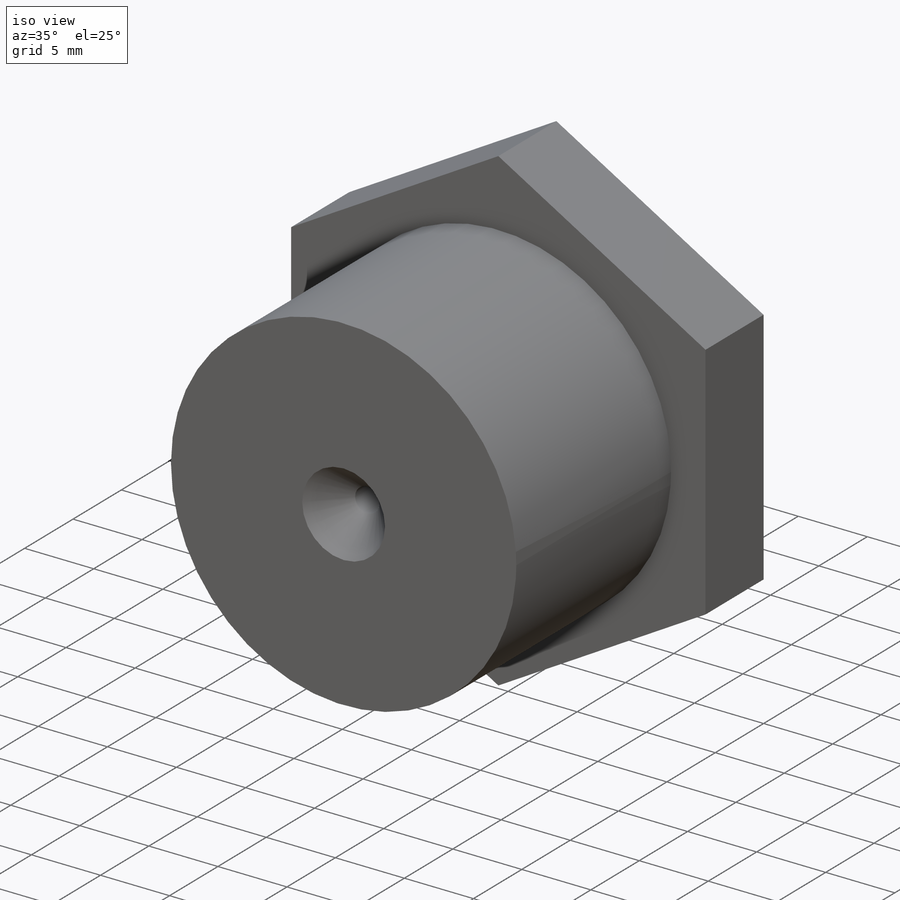
[diagram: iso view]
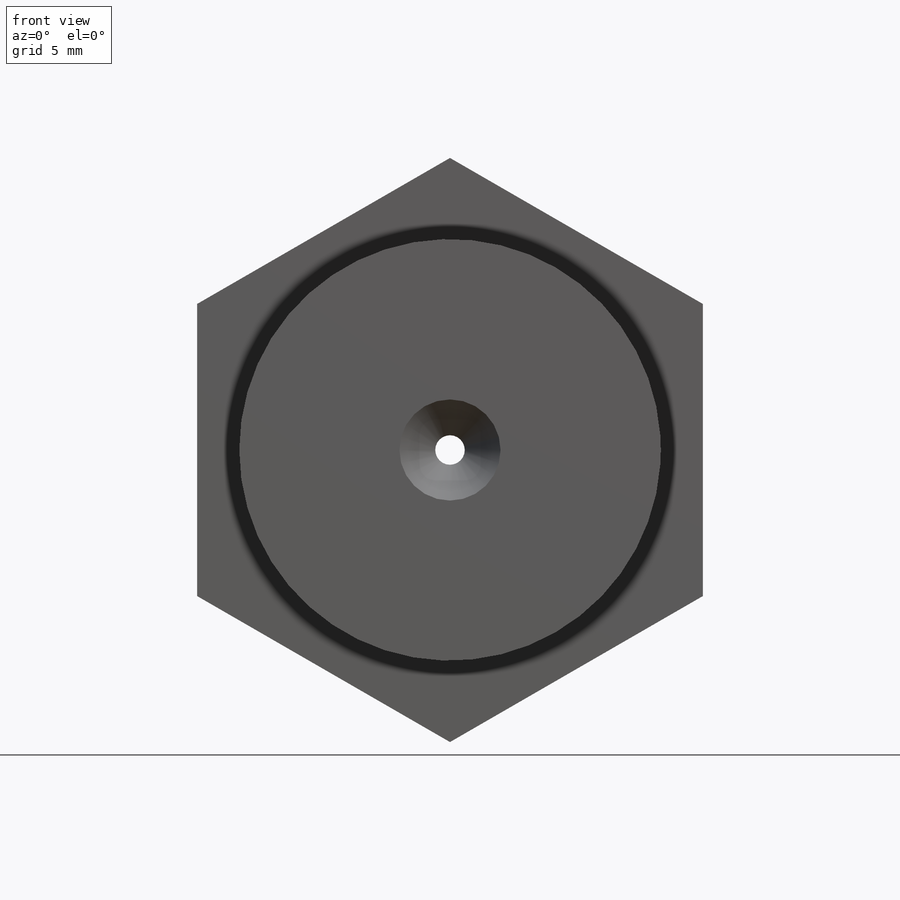
[diagram: front view]
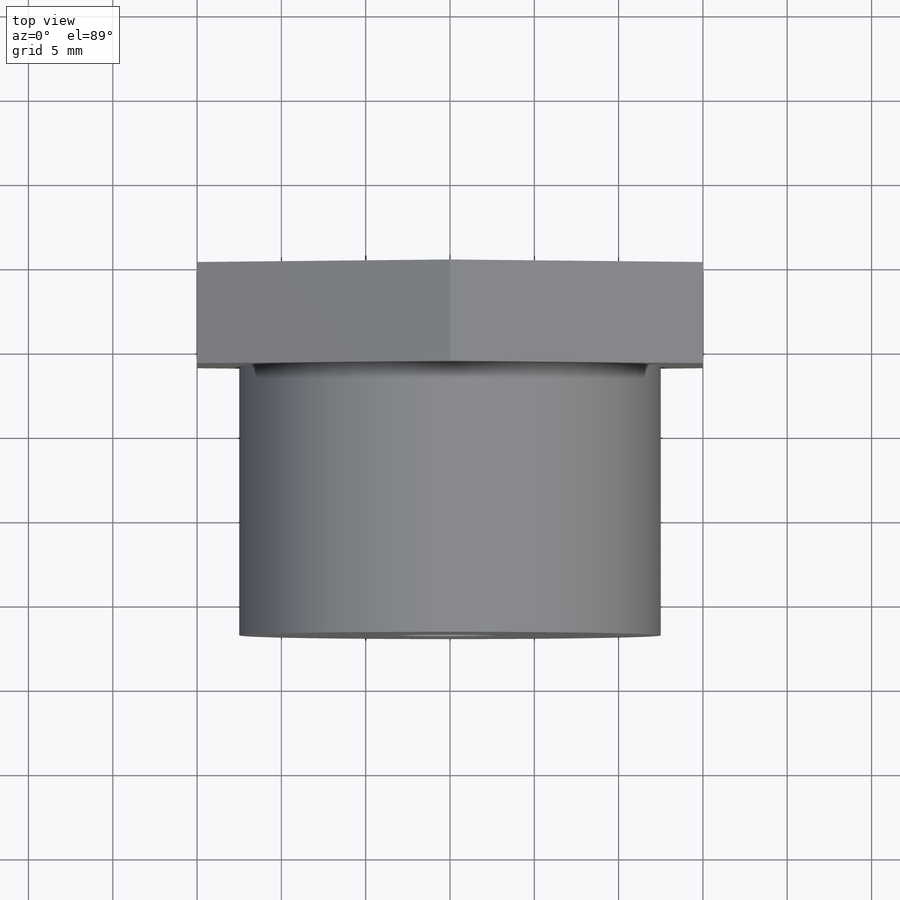
[diagram: top view]
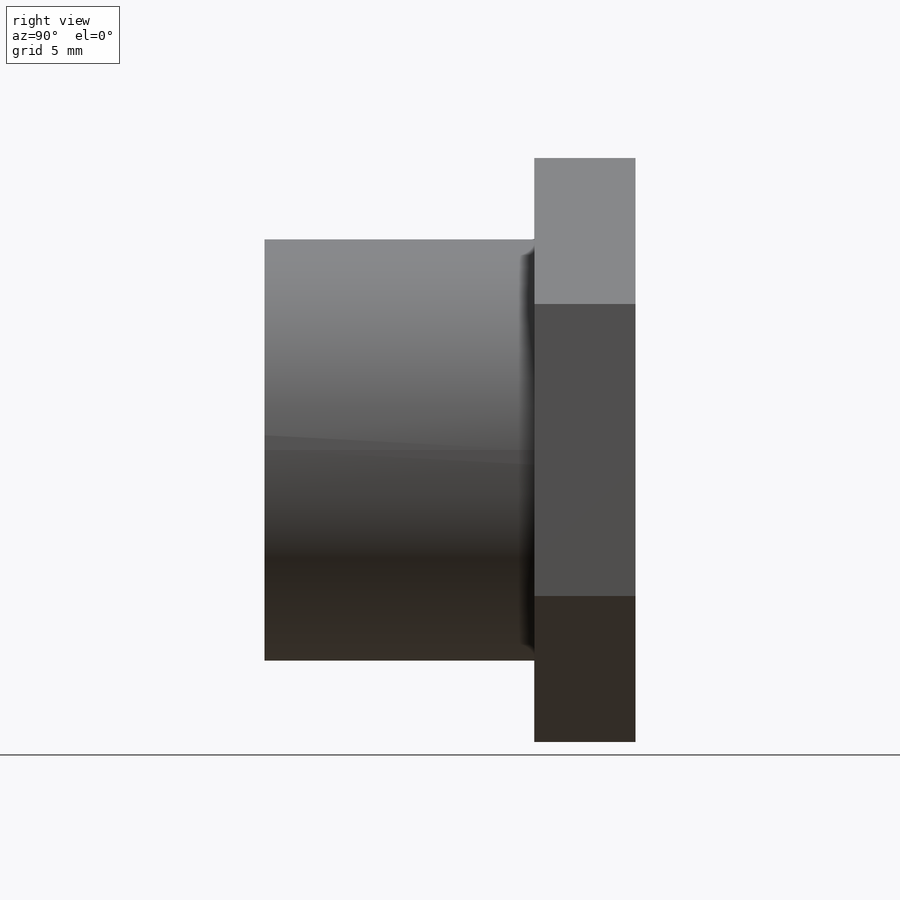
[diagram: right view]
SOLIDWORKS PART (.sldprt)
format: sldprt  version: not decoded by parser v0  size: 221,184 bytes
history: native  units: mm
features: sketch x5, plane x3, extrude x2, thread x2, material x1, hole x1, cut_revolve x1 (+13 scaffold rows collapsed)
feature tree (28):
  scaffold x13  (default folders/planes/origin — collapsed)
  material  "Lega 1060"
  plane  "Piano frontale"
  plane  "Piano superiore"
  plane  "Piano destro"
  sketch  "Schizzo1"  dims[D1=30.0mm]
  extrude  "Estrusione-Estrusione1"  Depth=6mm
  sketch  "Schizzo2"  dims[D1=25.0mm]
  extrude  "Estrusione-Estrusione2"  [1 undecoded]
  thread  "Filettatura cosmetica1"  Diameter=10mm  [1 undecoded]
  thread  "Filettatura cosmetica2"  Diameter=15mm  [1 undecoded]
  hole  "Foro1"  Diameter=1.75mm Depth=22mm
  sketch  "Schizzo6"
  sketch  "Schizzo5"  dims[Diameter=1.75mm Depth=22.0mm C-Sink Angle=82.0deg C-Sink Diameter=6.0mm]
  sketch  "Schizzo7"  dims[c1.D1=~2.375813mm c2.D1=45.0deg c2.D2=~2.397053mm c3.D2=45.0deg c4.D2=1.5mm]
  cut_revolve  "Taglia-Rivoluzione1"  Angle=360deg
decode coverage: 9 of 11 modeling features carry decoded parameters
note: ~ marks probable driven/reference dimensions
note: 3 parameter values undecoded
note: suppression state not decoded; provenance and decode notes live in map.json
